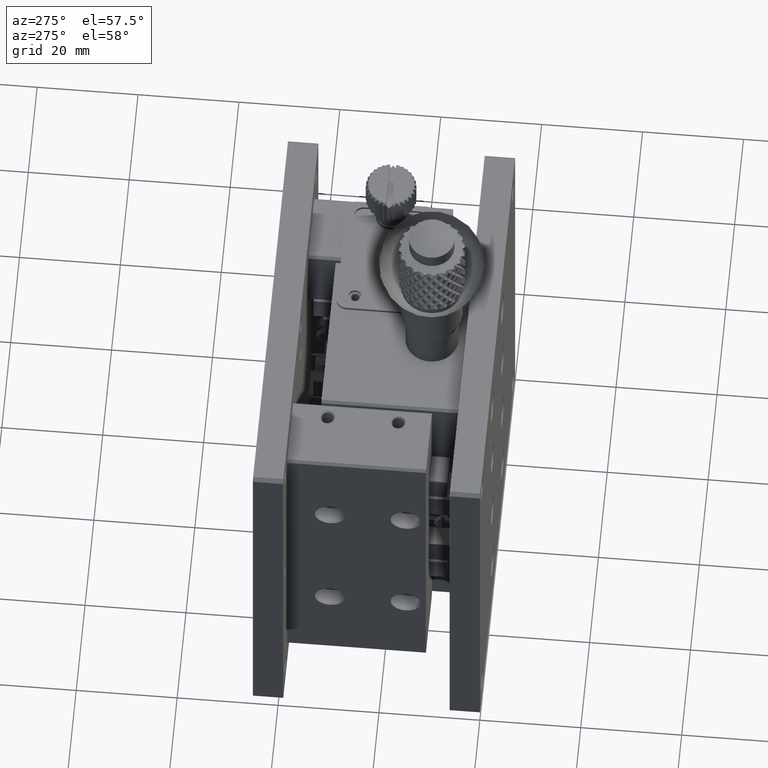
[diagram: clean part render]
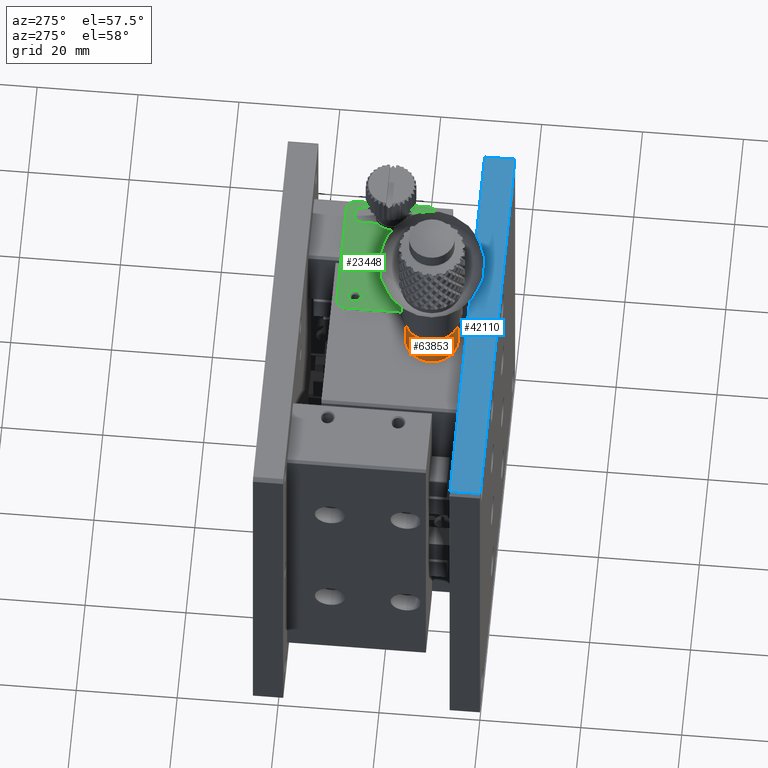
[diagram: same view with three faces highlighted in distinct colors, each labeled with its STEP entity id]
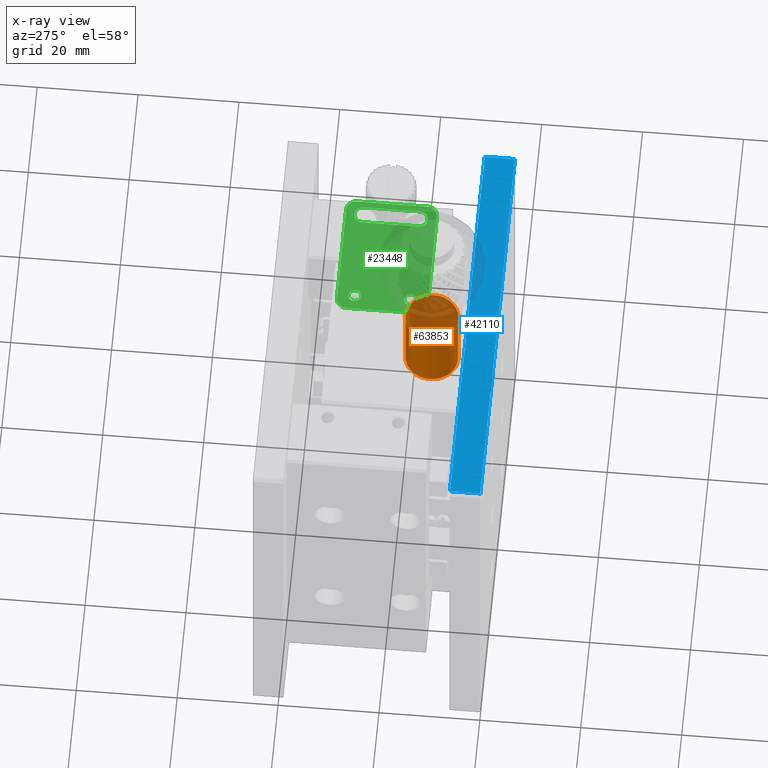
[diagram: x-ray of the same camera — body ghosted, the three highlighted faces saturated]
A machine part, auxiliary view with three faces highlighted in distinct colors.
The next image is the same camera in x-ray (body ghosted, the three faces saturated) — at least one of them is partly hidden behind the body in this view.
Their STEP definitions:

[orange] entity #63853 — the highlighted cylindrical surface (bore or boss wall) has radius 5.25 mm, axis along (0, 0, -1).
#1883 = CARTESIAN_POINT ( 'NONE',  ( 40.00000000000000000, 7.750000000000004441, -13.00200000000000600 ) ) ;
#3484 = DIRECTION ( 'NONE',  ( 0.000000000000000000, 6.072288236963999812E-17, -1.000000000000000000 ) ) ;
#4952 = ORIENTED_EDGE ( 'NONE', *, *, #35214, .T. ) ;
#8113 = CIRCLE ( 'NONE', #57794, 5.250000000000000000 ) ;
#13621 = CARTESIAN_POINT ( 'NONE',  ( 40.00000000000000000, 13.00000000000000533, -19.50000000000000355 ) ) ;
#17314 = DIRECTION ( 'NONE',  ( 0.000000000000000000, -1.000000000000000000, -4.130293990420969390E-17 ) ) ;
#22801 = DIRECTION ( 'NONE',  ( 0.000000000000000000, -1.000000000000000000, 0.000000000000000000 ) ) ;
#23638 = EDGE_CURVE ( 'NONE', #38764, #38764, #8113, .T. ) ;
#27739 = CIRCLE ( 'NONE', #53638, 5.250000000000000000 ) ;
#28882 = FACE_OUTER_BOUND ( 'NONE', #44398, .T. ) ;
#34643 = DIRECTION ( 'NONE',  ( 0.000000000000000000, -1.000000000000000000, 0.000000000000000000 ) ) ;
#35029 = AXIS2_PLACEMENT_3D ( 'NONE', #13621, #3484, #34643 ) ;
#35214 = EDGE_CURVE ( 'NONE', #50848, #50848, #27739, .T. ) ;
#36006 = CARTESIAN_POINT ( 'NONE',  ( 40.00000000000000000, 7.750000000000002665, 1.497999999999999110 ) ) ;
#38300 = DIRECTION ( 'NONE',  ( 0.000000000000000000, 6.072288236963999812E-17, -1.000000000000000000 ) ) ;
#38764 = VERTEX_POINT ( 'NONE', #1883 ) ;
#38978 = CARTESIAN_POINT ( 'NONE',  ( 40.00000000000000000, 13.00000000000000355, 1.497999999999999332 ) ) ;
#39043 = CYLINDRICAL_SURFACE ( 'NONE', #35029, 5.250000000000000000 ) ;
#43778 = DIRECTION ( 'NONE',  ( -0.000000000000000000, -6.072288236963999812E-17, 1.000000000000000000 ) ) ;
#44398 = EDGE_LOOP ( 'NONE', ( #4952 ) ) ;
#45490 = EDGE_LOOP ( 'NONE', ( #54099 ) ) ;
#49474 = FACE_OUTER_BOUND ( 'NONE', #45490, .T. ) ;
#50848 = VERTEX_POINT ( 'NONE', #36006 ) ;
#53198 = CARTESIAN_POINT ( 'NONE',  ( 40.00000000000000000, 13.00000000000000533, -13.00200000000000600 ) ) ;
#53638 = AXIS2_PLACEMENT_3D ( 'NONE', #38978, #38300, #17314 ) ;
#54099 = ORIENTED_EDGE ( 'NONE', *, *, #23638, .T. ) ;
#57794 = AXIS2_PLACEMENT_3D ( 'NONE', #53198, #43778, #22801 ) ;
#63853 = ADVANCED_FACE ( 'NONE', ( #28882, #49474 ), #39043, .T. ) ;

[blue] entity #42110 — the highlighted planar face has unit normal (0, 0, -1).
#480 = CARTESIAN_POINT ( 'NONE',  ( 79.29000000000002046, 6.000000000000000000, -1.734723475976806700E-15 ) ) ;
#722 = ORIENTED_EDGE ( 'NONE', *, *, #30321, .F. ) ;
#1135 = EDGE_CURVE ( 'NONE', #4131, #42287, #23496, .T. ) ;
#2257 = DIRECTION ( 'NONE',  ( 0.000000000000000000, 0.000000000000000000, -1.000000000000000000 ) ) ;
#4131 = VERTEX_POINT ( 'NONE', #13163 ) ;
#4273 = CARTESIAN_POINT ( 'NONE',  ( 0.7099999999999999645, 6.000000000000000000, 0.000000000000000000 ) ) ;
#4554 = VERTEX_POINT ( 'NONE', #41161 ) ;
#4594 = DIRECTION ( 'NONE',  ( 1.000000000000000000, -0.000000000000000000, 0.000000000000000000 ) ) ;
#5483 = VECTOR ( 'NONE', #61290, 1000.000000000000000 ) ;
#9957 = ORIENTED_EDGE ( 'NONE', *, *, #21506, .F. ) ;
#10394 = PLANE ( 'NONE',  #58526 ) ;
#13163 = CARTESIAN_POINT ( 'NONE',  ( 0.7100000000000000755, -1.951563910473907981E-15, 8.131516293641283255E-17 ) ) ;
#15680 = LINE ( 'NONE', #56908, #5483 ) ;
#17808 = ORIENTED_EDGE ( 'NONE', *, *, #1135, .F. ) ;
#17820 = CARTESIAN_POINT ( 'NONE',  ( 0.7099999999999999645, 6.000000000000000000, 0.000000000000000000 ) ) ;
#21506 = EDGE_CURVE ( 'NONE', #22972, #4554, #51744, .T. ) ;
#21956 = VECTOR ( 'NONE', #58968, 1000.000000000000000 ) ;
#22383 = EDGE_LOOP ( 'NONE', ( #9957, #722, #17808, #41280 ) ) ;
#22972 = VERTEX_POINT ( 'NONE', #480 ) ;
#23496 = LINE ( 'NONE', #53574, #21956 ) ;
#24079 = VECTOR ( 'NONE', #36897, 1000.000000000000000 ) ;
#25311 = FACE_OUTER_BOUND ( 'NONE', #22383, .T. ) ;
#26818 = VECTOR ( 'NONE', #4594, 1000.000000000000000 ) ;
#27387 = CARTESIAN_POINT ( 'NONE',  ( 79.29000000000000625, 6.000000000000000000, 0.000000000000000000 ) ) ;
#30321 = EDGE_CURVE ( 'NONE', #42287, #22972, #31004, .T. ) ;
#31004 = LINE ( 'NONE', #4273, #26818 ) ;
#33408 = DIRECTION ( 'NONE',  ( -1.000000000000000000, 0.000000000000000000, -0.000000000000000000 ) ) ;
#36897 = DIRECTION ( 'NONE',  ( -0.000000000000000000, -1.000000000000000000, -0.000000000000000000 ) ) ;
#41161 = CARTESIAN_POINT ( 'NONE',  ( 79.29000000000002046, 0.000000000000000000, -8.673617379884033500E-16 ) ) ;
#41280 = ORIENTED_EDGE ( 'NONE', *, *, #61364, .T. ) ;
#42110 = ADVANCED_FACE ( 'NONE', ( #25311 ), #10394, .F. ) ;
#42287 = VERTEX_POINT ( 'NONE', #62357 ) ;
#51744 = LINE ( 'NONE', #27387, #24079 ) ;
#53574 = CARTESIAN_POINT ( 'NONE',  ( 0.7099999999999999645, 6.000000000000000000, 0.000000000000000000 ) ) ;
#56908 = CARTESIAN_POINT ( 'NONE',  ( 0.000000000000000000, 0.000000000000000000, 0.000000000000000000 ) ) ;
#58526 = AXIS2_PLACEMENT_3D ( 'NONE', #17820, #2257, #33408 ) ;
#58968 = DIRECTION ( 'NONE',  ( 0.000000000000000000, 1.000000000000000000, 0.000000000000000000 ) ) ;
#61290 = DIRECTION ( 'NONE',  ( 1.000000000000000000, 0.000000000000000000, -0.000000000000000000 ) ) ;
#61364 = EDGE_CURVE ( 'NONE', #4131, #4554, #15680, .T. ) ;
#62357 = CARTESIAN_POINT ( 'NONE',  ( 0.7099999999999999645, 6.000000000000000000, 0.000000000000000000 ) ) ;

[green] entity #23448 — the highlighted planar face has unit normal (0, 0, 1).
#655 = EDGE_LOOP ( 'NONE', ( #50757 ) ) ;
#659 = EDGE_CURVE ( 'NONE', #42951, #18978, #39228, .T. ) ;
#990 = CARTESIAN_POINT ( 'NONE',  ( 47.50000000000000000, 30.50000000000000000, -6.000000000000000000 ) ) ;
#1063 = VERTEX_POINT ( 'NONE', #42822 ) ;
#1320 = FACE_OUTER_BOUND ( 'NONE', #60434, .T. ) ;
#1637 = CIRCLE ( 'NONE', #23231, 2.000000000000015543 ) ;
#1770 = DIRECTION ( 'NONE',  ( -0.000000000000000000, 1.000000000000000000, 0.000000000000000000 ) ) ;
#2139 = CARTESIAN_POINT ( 'NONE',  ( 67.50000000000000000, 29.00000000000000000, -6.000000000000000000 ) ) ;
#2567 = DIRECTION ( 'NONE',  ( -0.000000000000000000, 1.000000000000000000, 0.000000000000000000 ) ) ;
#2906 = DIRECTION ( 'NONE',  ( -0.000000000000000000, -0.000000000000000000, 1.000000000000000000 ) ) ;
#3103 = CARTESIAN_POINT ( 'NONE',  ( 69.25000000000000000, 29.00000000000000000, -6.000000000000000000 ) ) ;
#3900 = DIRECTION ( 'NONE',  ( -1.000000000000000000, 0.000000000000000000, 0.000000000000000000 ) ) ;
#5116 = VERTEX_POINT ( 'NONE', #46396 ) ;
#5125 = ORIENTED_EDGE ( 'NONE', *, *, #22871, .T. ) ;
#5389 = EDGE_CURVE ( 'NONE', #53012, #40446, #65669, .T. ) ;
#6046 = FACE_BOUND ( 'NONE', #46220, .T. ) ;
#6962 = CARTESIAN_POINT ( 'NONE',  ( 47.50000000000000000, 30.50000000000000000, -6.000000000000000000 ) ) ;
#7104 = EDGE_CURVE ( 'NONE', #27601, #42951, #58615, .T. ) ;
#7402 = FACE_BOUND ( 'NONE', #655, .T. ) ;
#7416 = CARTESIAN_POINT ( 'NONE',  ( 48.50000000000000000, 18.00000000000000355, -6.000000000000000000 ) ) ;
#7497 = VERTEX_POINT ( 'NONE', #23641 ) ;
#7652 = LINE ( 'NONE', #28279, #13678 ) ;
#8034 = CARTESIAN_POINT ( 'NONE',  ( 48.50000000000000000, 29.00000000000000000, -6.000000000000000000 ) ) ;
#8492 = VERTEX_POINT ( 'NONE', #46989 ) ;
#10354 = CARTESIAN_POINT ( 'NONE',  ( 47.50000000000000000, 32.50000000000000000, -6.000000000000000000 ) ) ;
#10499 = DIRECTION ( 'NONE',  ( 0.000000000000000000, -1.000000000000000000, -0.000000000000000000 ) ) ;
#11357 = VERTEX_POINT ( 'NONE', #50503 ) ;
#11533 = CARTESIAN_POINT ( 'NONE',  ( 68.50000000000000000, 30.50000000000000000, -6.000000000000000000 ) ) ;
#12328 = VECTOR ( 'NONE', #1770, 1000.000000000000000 ) ;
#12569 = LINE ( 'NONE', #28147, #12328 ) ;
#12605 = AXIS2_PLACEMENT_3D ( 'NONE', #7416, #63844, #48985 ) ;
#13476 = CARTESIAN_POINT ( 'NONE',  ( 68.50000000000000000, 32.50000000000000000, -6.000000000000000000 ) ) ;
#13678 = VECTOR ( 'NONE', #2567, 1000.000000000000000 ) ;
#13767 = EDGE_CURVE ( 'NONE', #8492, #27601, #7652, .T. ) ;
#14794 = CIRCLE ( 'NONE', #12605, 1.250000000000001110 ) ;
#14875 = VERTEX_POINT ( 'NONE', #30133 ) ;
#15393 = EDGE_CURVE ( 'NONE', #1063, #14875, #53801, .T. ) ;
#16363 = CIRCLE ( 'NONE', #26121, 2.000000000000008882 ) ;
#16549 = DIRECTION ( 'NONE',  ( 0.000000000000000000, 0.000000000000000000, 1.000000000000000000 ) ) ;
#17430 = DIRECTION ( 'NONE',  ( 0.000000000000000000, 0.000000000000000000, -1.000000000000000000 ) ) ;
#18183 = AXIS2_PLACEMENT_3D ( 'NONE', #8034, #20161, #36067 ) ;
#18297 = EDGE_CURVE ( 'NONE', #50860, #11357, #16363, .T. ) ;
#18872 = VECTOR ( 'NONE', #60665, 1000.000000000000000 ) ;
#18978 = VERTEX_POINT ( 'NONE', #10354 ) ;
#19140 = CARTESIAN_POINT ( 'NONE',  ( 68.50000000000000000, 16.50000000000000000, -6.000000000000000000 ) ) ;
#20161 = DIRECTION ( 'NONE',  ( 0.000000000000000000, 0.000000000000000000, -1.000000000000000000 ) ) ;
#20800 = VECTOR ( 'NONE', #23656, 1000.000000000000000 ) ;
#20847 = EDGE_LOOP ( 'NONE', ( #24620, #57844, #25015, #43445 ) ) ;
#22743 = EDGE_CURVE ( 'NONE', #7497, #18978, #37222, .T. ) ;
#22871 = EDGE_CURVE ( 'NONE', #50860, #26346, #65369, .T. ) ;
#23231 = AXIS2_PLACEMENT_3D ( 'NONE', #19140, #2906, #3900 ) ;
#23448 = ADVANCED_FACE ( 'NONE', ( #1320, #53713, #7402, #6046 ), #42620, .T. ) ;
#23641 = CARTESIAN_POINT ( 'NONE',  ( 45.50000000000000000, 30.50000000000000000, -6.000000000000000000 ) ) ;
#23656 = DIRECTION ( 'NONE',  ( -1.000000000000000000, -0.000000000000000000, -0.000000000000000000 ) ) ;
#24620 = ORIENTED_EDGE ( 'NONE', *, *, #15393, .T. ) ;
#25015 = ORIENTED_EDGE ( 'NONE', *, *, #5389, .T. ) ;
#25033 = ORIENTED_EDGE ( 'NONE', *, *, #22743, .F. ) ;
#26036 = ORIENTED_EDGE ( 'NONE', *, *, #31010, .T. ) ;
#26121 = AXIS2_PLACEMENT_3D ( 'NONE', #36413, #51921, #26234 ) ;
#26234 = DIRECTION ( 'NONE',  ( -1.000000000000000000, 0.000000000000000000, 0.000000000000000000 ) ) ;
#26346 = VERTEX_POINT ( 'NONE', #31286 ) ;
#26864 = ORIENTED_EDGE ( 'NONE', *, *, #66177, .T. ) ;
#27405 = LINE ( 'NONE', #57813, #50475 ) ;
#27601 = VERTEX_POINT ( 'NONE', #29182 ) ;
#28147 = CARTESIAN_POINT ( 'NONE',  ( 65.75000000000000000, 30.50000000000000000, -6.000000000000000000 ) ) ;
#28277 = DIRECTION ( 'NONE',  ( 0.000000000000000000, 0.000000000000000000, -1.000000000000000000 ) ) ;
#28279 = CARTESIAN_POINT ( 'NONE',  ( 70.50000000000000000, 30.50000000000000000, -6.000000000000000000 ) ) ;
#28442 = LINE ( 'NONE', #44013, #29140 ) ;
#29140 = VECTOR ( 'NONE', #64892, 1000.000000000000000 ) ;
#29182 = CARTESIAN_POINT ( 'NONE',  ( 70.50000000000000000, 30.50000000000000000, -6.000000000000000000 ) ) ;
#29727 = CARTESIAN_POINT ( 'NONE',  ( 68.50000000000000000, 32.50000000000001421, -6.000000000000000000 ) ) ;
#30133 = CARTESIAN_POINT ( 'NONE',  ( 65.75000000000000000, 18.00000000000000355, -6.000000000000000000 ) ) ;
#31010 = EDGE_CURVE ( 'NONE', #7497, #11357, #27405, .T. ) ;
#31286 = CARTESIAN_POINT ( 'NONE',  ( 68.50000000000000000, 14.49999999999999467, -6.000000000000000000 ) ) ;
#33222 = DIRECTION ( 'NONE',  ( -0.000000000000000000, -0.000000000000000000, 1.000000000000000000 ) ) ;
#33315 = EDGE_CURVE ( 'NONE', #40446, #1063, #28442, .T. ) ;
#33896 = ORIENTED_EDGE ( 'NONE', *, *, #18297, .F. ) ;
#36067 = DIRECTION ( 'NONE',  ( -1.000000000000000000, 0.000000000000000000, 0.000000000000000000 ) ) ;
#36413 = CARTESIAN_POINT ( 'NONE',  ( 47.50000000000000000, 16.50000000000000000, -6.000000000000000000 ) ) ;
#36611 = AXIS2_PLACEMENT_3D ( 'NONE', #2139, #63293, #47469 ) ;
#37222 = CIRCLE ( 'NONE', #48023, 2.000000000000008882 ) ;
#37369 = ORIENTED_EDGE ( 'NONE', *, *, #57211, .T. ) ;
#38287 = DIRECTION ( 'NONE',  ( -1.000000000000000000, 0.000000000000000000, 0.000000000000000000 ) ) ;
#38790 = DIRECTION ( 'NONE',  ( -1.000000000000000000, 0.000000000000000000, 0.000000000000000000 ) ) ;
#39228 = LINE ( 'NONE', #13476, #20800 ) ;
#40038 = ORIENTED_EDGE ( 'NONE', *, *, #13767, .T. ) ;
#40446 = VERTEX_POINT ( 'NONE', #3103 ) ;
#41960 = DIRECTION ( 'NONE',  ( 1.000000000000000000, 0.000000000000000000, -0.000000000000000000 ) ) ;
#42620 = PLANE ( 'NONE',  #63112 ) ;
#42822 = CARTESIAN_POINT ( 'NONE',  ( 69.25000000000000000, 18.00000000000000355, -6.000000000000000000 ) ) ;
#42951 = VERTEX_POINT ( 'NONE', #29727 ) ;
#43445 = ORIENTED_EDGE ( 'NONE', *, *, #33315, .T. ) ;
#44013 = CARTESIAN_POINT ( 'NONE',  ( 69.25000000000000000, 30.50000000000000000, -6.000000000000000000 ) ) ;
#44144 = DIRECTION ( 'NONE',  ( -1.000000000000000000, 0.000000000000000000, 0.000000000000000000 ) ) ;
#46220 = EDGE_LOOP ( 'NONE', ( #37369 ) ) ;
#46396 = CARTESIAN_POINT ( 'NONE',  ( 47.25000000000000000, 29.00000000000000000, -6.000000000000000000 ) ) ;
#46989 = CARTESIAN_POINT ( 'NONE',  ( 70.50000000000000000, 16.50000000000000000, -6.000000000000000000 ) ) ;
#47295 = CARTESIAN_POINT ( 'NONE',  ( 65.75000000000000000, 29.00000000000000000, -6.000000000000000000 ) ) ;
#47469 = DIRECTION ( 'NONE',  ( -1.000000000000000000, 0.000000000000000000, 0.000000000000000000 ) ) ;
#48023 = AXIS2_PLACEMENT_3D ( 'NONE', #6962, #28277, #38790 ) ;
#48392 = CIRCLE ( 'NONE', #18183, 1.250000000000001110 ) ;
#48985 = DIRECTION ( 'NONE',  ( -1.000000000000000000, 0.000000000000000000, 0.000000000000000000 ) ) ;
#50009 = AXIS2_PLACEMENT_3D ( 'NONE', #11533, #33222, #38287 ) ;
#50475 = VECTOR ( 'NONE', #10499, 1000.000000000000000 ) ;
#50503 = CARTESIAN_POINT ( 'NONE',  ( 45.50000000000000000, 16.50000000000000000, -6.000000000000000000 ) ) ;
#50537 = CARTESIAN_POINT ( 'NONE',  ( 47.50000000000000000, 14.50000000000000000, -6.000000000000000000 ) ) ;
#50757 = ORIENTED_EDGE ( 'NONE', *, *, #54196, .T. ) ;
#50763 = VERTEX_POINT ( 'NONE', #62231 ) ;
#50860 = VERTEX_POINT ( 'NONE', #52790 ) ;
#51921 = DIRECTION ( 'NONE',  ( 0.000000000000000000, 0.000000000000000000, -1.000000000000000000 ) ) ;
#52790 = CARTESIAN_POINT ( 'NONE',  ( 47.50000000000000000, 14.50000000000000000, -6.000000000000000000 ) ) ;
#53012 = VERTEX_POINT ( 'NONE', #47295 ) ;
#53713 = FACE_BOUND ( 'NONE', #20847, .T. ) ;
#53801 = CIRCLE ( 'NONE', #60295, 1.750000000000001554 ) ;
#54196 = EDGE_CURVE ( 'NONE', #50763, #50763, #14794, .T. ) ;
#56107 = ORIENTED_EDGE ( 'NONE', *, *, #7104, .T. ) ;
#57211 = EDGE_CURVE ( 'NONE', #5116, #5116, #48392, .T. ) ;
#57813 = CARTESIAN_POINT ( 'NONE',  ( 45.50000000000000000, 30.50000000000000000, -6.000000000000000000 ) ) ;
#57844 = ORIENTED_EDGE ( 'NONE', *, *, #65580, .T. ) ;
#58615 = CIRCLE ( 'NONE', #50009, 2.000000000000015543 ) ;
#59107 = ORIENTED_EDGE ( 'NONE', *, *, #659, .T. ) ;
#60295 = AXIS2_PLACEMENT_3D ( 'NONE', #63708, #17430, #44144 ) ;
#60434 = EDGE_LOOP ( 'NONE', ( #56107, #59107, #25033, #26036, #33896, #5125, #26864, #40038 ) ) ;
#60665 = DIRECTION ( 'NONE',  ( 1.000000000000000000, 0.000000000000000000, -0.000000000000000000 ) ) ;
#62231 = CARTESIAN_POINT ( 'NONE',  ( 47.25000000000000000, 18.00000000000000355, -6.000000000000000000 ) ) ;
#63112 = AXIS2_PLACEMENT_3D ( 'NONE', #990, #16549, #41960 ) ;
#63293 = DIRECTION ( 'NONE',  ( 0.000000000000000000, 0.000000000000000000, -1.000000000000000000 ) ) ;
#63708 = CARTESIAN_POINT ( 'NONE',  ( 67.50000000000000000, 18.00000000000000355, -6.000000000000000000 ) ) ;
#63844 = DIRECTION ( 'NONE',  ( 0.000000000000000000, 0.000000000000000000, -1.000000000000000000 ) ) ;
#64892 = DIRECTION ( 'NONE',  ( 0.000000000000000000, -1.000000000000000000, -0.000000000000000000 ) ) ;
#65369 = LINE ( 'NONE', #50537, #18872 ) ;
#65580 = EDGE_CURVE ( 'NONE', #14875, #53012, #12569, .T. ) ;
#65669 = CIRCLE ( 'NONE', #36611, 1.750000000000001554 ) ;
#66177 = EDGE_CURVE ( 'NONE', #26346, #8492, #1637, .T. ) ;